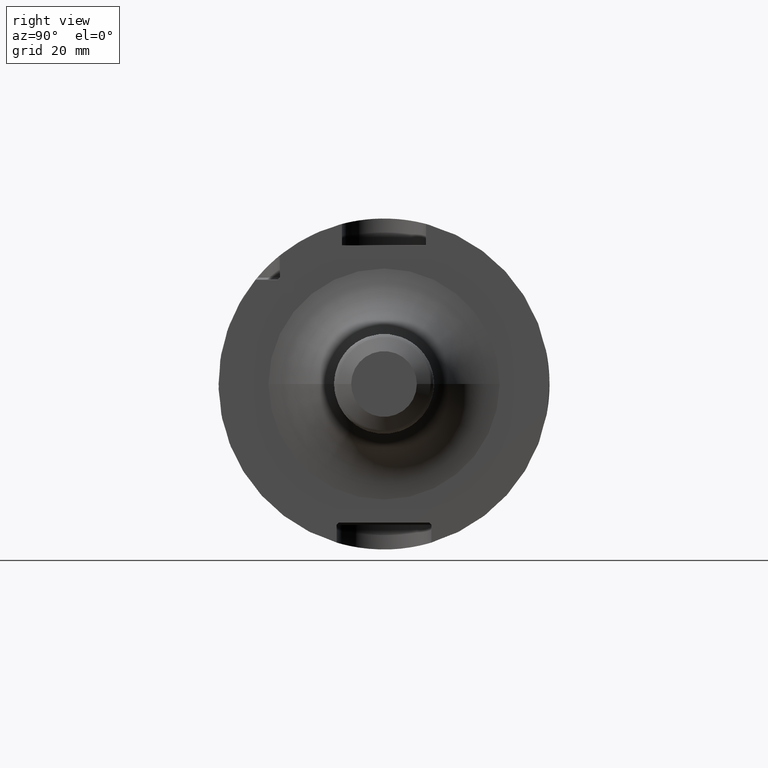
[diagram: clean part render]
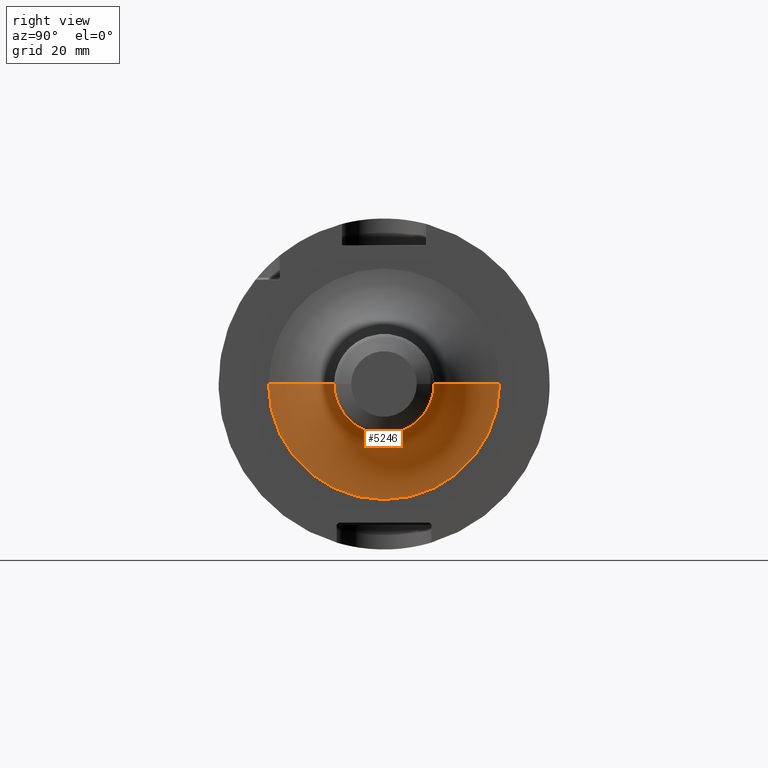
[diagram: same view with one face highlighted and labeled with its STEP entity id]
A machine part, right view. The second image highlights one B-rep face of the part: STEP entity #5246.
In plain terms, the highlighted toroidal blend (fillet) surface has major radius 22 mm and minor (blend) radius 12.5 mm.
Its self-contained STEP definition (entity closure, byte-faithful):
#1708=CARTESIAN_POINT('',(2.6E1,0.E0,0.E0));
#1709=DIRECTION('',(1.E0,0.E0,0.E0));
#1710=DIRECTION('',(0.E0,-1.E0,0.E0));
#1711=AXIS2_PLACEMENT_3D('',#1708,#1709,#1710);
#1956=CARTESIAN_POINT('',(3.85E1,-2.2E1,4.727246372127E-12));
#1957=DIRECTION('',(0.E0,-2.148767275223E-13,-1.E0));
#1958=DIRECTION('',(-1.E0,0.E0,0.E0));
#1959=AXIS2_PLACEMENT_3D('',#1956,#1957,#1958);
#1961=CARTESIAN_POINT('',(3.85E1,2.2E1,-4.730327241020E-12));
#1962=DIRECTION('',(0.E0,2.150137706769E-13,1.E0));
#1963=DIRECTION('',(-1.E0,0.E0,0.E0));
#1964=AXIS2_PLACEMENT_3D('',#1961,#1962,#1963);
#1995=CARTESIAN_POINT('',(3.85E1,0.E0,0.E0));
#1996=DIRECTION('',(1.E0,0.E0,0.E0));
#1997=DIRECTION('',(0.E0,-1.E0,0.E0));
#1998=AXIS2_PLACEMENT_3D('',#1995,#1996,#1997);
#3116=CARTESIAN_POINT('',(2.6E1,-2.2E1,0.E0));
#3117=CARTESIAN_POINT('',(2.6E1,2.2E1,0.E0));
#3118=VERTEX_POINT('',#3116);
#3119=VERTEX_POINT('',#3117);
#3120=CARTESIAN_POINT('',(3.85E1,-9.5E0,0.E0));
#3121=CARTESIAN_POINT('',(3.85E1,9.5E0,0.E0));
#3122=VERTEX_POINT('',#3120);
#3123=VERTEX_POINT('',#3121);
#5232=CARTESIAN_POINT('',(3.85E1,0.E0,0.E0));
#5233=DIRECTION('',(1.E0,0.E0,0.E0));
#5234=DIRECTION('',(0.E0,-9.999672514283E-1,8.092964286080E-3));
#5235=AXIS2_PLACEMENT_3D('',#5232,#5233,#5234);
#5236=TOROIDAL_SURFACE('',#5235,2.2E1,1.25E1);
#5237=ORIENTED_EDGE('',*,*,#4939,.F.);
#5239=ORIENTED_EDGE('',*,*,#5238,.T.);
#5241=ORIENTED_EDGE('',*,*,#5240,.T.);
#5243=ORIENTED_EDGE('',*,*,#5242,.F.);
#5244=EDGE_LOOP('',(#5237,#5239,#5241,#5243));
#5245=FACE_OUTER_BOUND('',#5244,.F.);
#5246=ADVANCED_FACE('',(#5245),#5236,.F.);
#1712=CIRCLE('',#1711,2.2E1);
#1960=CIRCLE('',#1959,1.25E1);
#1965=CIRCLE('',#1964,1.25E1);
#1999=CIRCLE('',#1998,9.5E0);
#4939=EDGE_CURVE('',#3118,#3119,#1712,.T.);
#5238=EDGE_CURVE('',#3118,#3122,#1960,.T.);
#5240=EDGE_CURVE('',#3122,#3123,#1999,.T.);
#5242=EDGE_CURVE('',#3119,#3123,#1965,.T.);